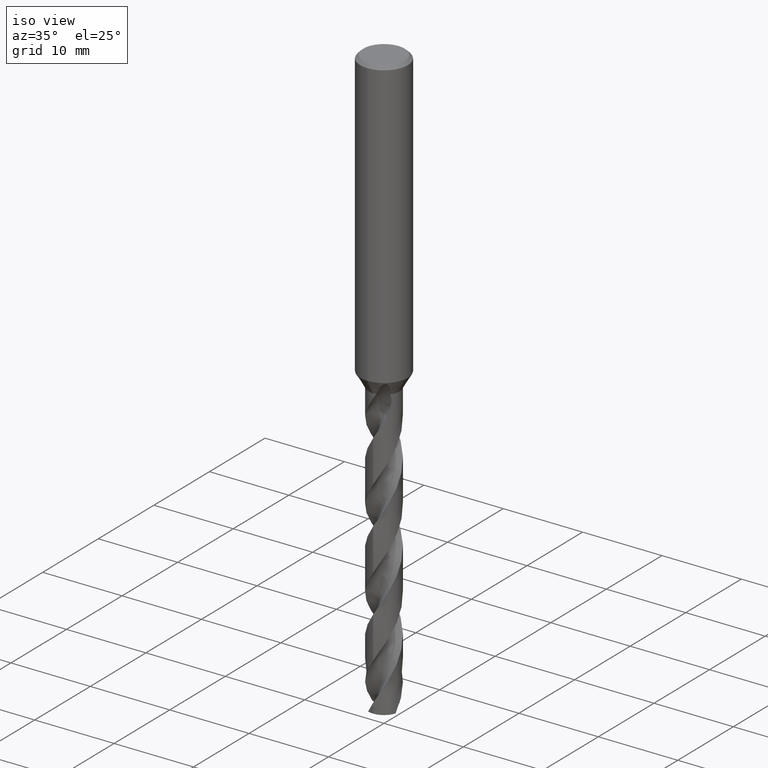
[diagram: clean part render]
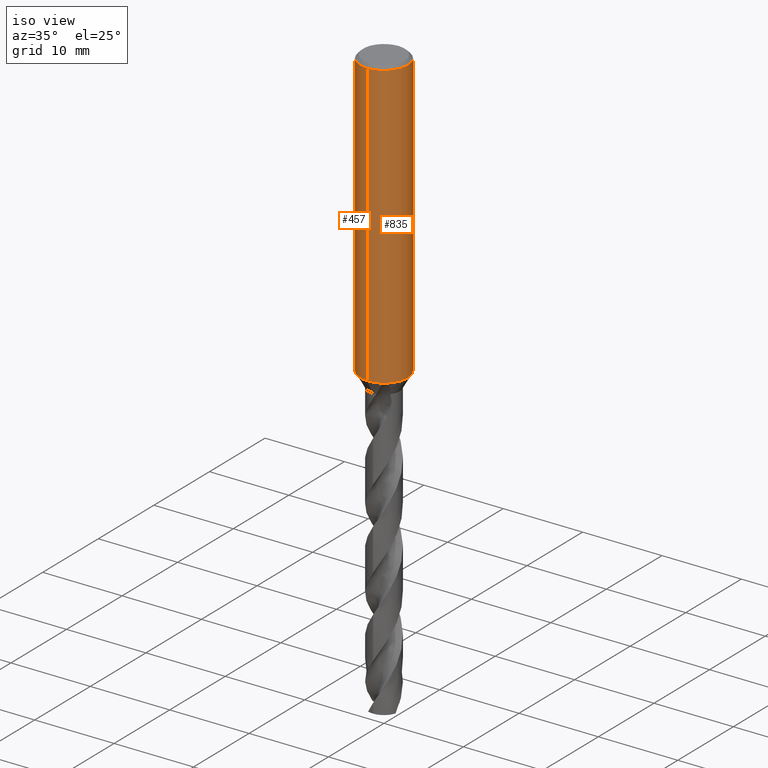
[diagram: same view with one multi-face feature highlighted, each face labeled with its STEP entity id]
A machine part, iso view. The highlighted faces form ONE feature: a constant-radius fillet chain: 2 tangent blend faces with common blend radius 3 mm. The faces share edges in the B-rep.
Their STEP definitions:
[1] entity #457 (Cylinder):
#303=VERTEX_POINT('',#858);
#351=VERTEX_POINT('',#911);
#357=EDGE_CURVE('',#303,#759,#917,.T.);
#365=EDGE_CURVE('',#351,#617,#925,.T.);
#397=VERTEX_POINT('',#960);
#457=ADVANCED_FACE('',(#1027),#1028,.T.);
#475=VERTEX_POINT('',#1047);
#509=EDGE_CURVE('',#715,#719,#1081,.T.);
#511=EDGE_CURVE('',#661,#397,#1083,.T.);
#523=EDGE_CURVE('',#719,#475,#1096,.T.);
#543=EDGE_CURVE('',#759,#657,#1117,.T.);
#617=VERTEX_POINT('',#1197);
#621=EDGE_CURVE('',#773,#715,#1201,.T.);
#627=EDGE_CURVE('',#397,#773,#1207,.T.);
#657=VERTEX_POINT('',#1242);
#661=VERTEX_POINT('',#1246);
#715=VERTEX_POINT('',#1306);
#717=EDGE_CURVE('',#617,#661,#1308,.T.);
#719=VERTEX_POINT('',#1310);
#745=EDGE_CURVE('',#657,#811,#1340,.T.);
#749=EDGE_CURVE('',#303,#475,#1344,.T.);
#759=VERTEX_POINT('',#1354);
#773=VERTEX_POINT('',#1369);
#799=EDGE_CURVE('',#811,#351,#1400,.T.);
#811=VERTEX_POINT('',#1414);
#858=CARTESIAN_POINT('',(3.67381906146713E-016,-3.0,-36.0));
#911=CARTESIAN_POINT('',(-0.486378944383045,2.96031003823262,-31.6432837483006));
#917=LINE('',#1973,#1974);
#925=B_SPLINE_CURVE_WITH_KNOTS('',3,(#2000,#2001,#2002,#2003,#2004,#2005,#2006,#2007,#2008,#2009,#2010,#2011,#2012,#2013,#2014,#2015,#2016,#2017,#2018,#2019,#2020,#2021,#2022,#2023,#2024,#2025,#2026),.UNSPECIFIED.,.F.,.F.,(4,2,3,2,2,2,2,2,2,2,2,2,4),(-0.54422824842136,-0.27211412421068,0.0,0.272114124210678,0.544228248421357,0.817906359646673,1.09158447087199,1.36255924571499,1.63353402055798,1.90530456554772,2.17707511053746,2.4488456555272,2.72061620051693),.UNSPECIFIED.);
#960=CARTESIAN_POINT('',(-2.06254272401587E-016,3.0,-32.5000801551881));
#1027=FACE_OUTER_BOUND('',#2813,.T.);
#1028=CYLINDRICAL_SURFACE('',#2814,3.0);
#1047=CARTESIAN_POINT('',(0.0,3.0,-36.0));
#1081=B_SPLINE_CURVE_WITH_KNOTS('',3,(#3271,#3272,#3273,#3274,#3275,#3276,#3277,#3278,#3279,#3280,#3281,#3282,#3283,#3284,#3285,#3286),.UNSPECIFIED.,.F.,.F.,(4,2,2,2,2,2,2,4),(5.66023402257373,6.29060333517104,6.60504483258975,6.91948633000846,7.23392782742717,7.54836932484587,7.86141901111221,8.17446869737855),.UNSPECIFIED.);
#1083=B_SPLINE_CURVE_WITH_KNOTS('',3,(#3289,#3290,#3291,#3292,#3293,#3294,#3295,#3296,#3297,#3298,#3299,#3300,#3301,#3302),.UNSPECIFIED.,.F.,.F.,(4,2,2,2,2,2,4),(3.16026050654945,3.61086409539206,4.06146768423468,4.51207127307729,4.95991823802074,5.40776520296419,5.86282890530594),.UNSPECIFIED.);
#1096=LINE('',#3333,#3334);
#1117=CIRCLE('',#3399,3.0);
#1197=CARTESIAN_POINT('',(-0.562333990228013,2.94682549253162,-31.3171221986971));
#1201=ELLIPSE('',#5271,3.34478529612858,3.0);
#1207=LINE('',#5282,#5283);
#1242=CARTESIAN_POINT('',(0.0,3.0,-0.399999999999999));
#1246=CARTESIAN_POINT('',(-1.0350734039088,2.81578107254819,-31.3171221986971));
#1306=CARTESIAN_POINT('',(-1.337052752443,2.68557069115386,-33.3720803908795));
#1308=CIRCLE('',#5827,3.0);
#1310=CARTESIAN_POINT('',(-2.46407913303377E-016,3.0,-34.0310253601033));
#1340=LINE('',#6210,#6211);
#1344=CIRCLE('',#6372,3.0);
#1354=CARTESIAN_POINT('',(3.67381906146713E-016,-3.0,-0.399999999999999));
#1369=CARTESIAN_POINT('',(-3.67366600472444E-016,3.0,-32.7128911336578));
#1400=B_SPLINE_CURVE_WITH_KNOTS('',3,(#6728,#6729,#6730,#6731,#6732,#6733,#6734,#6735,#6736,#6737,#6738,#6739,#6740,#6741,#6742,#6743,#6744,#6745,#6746,#6747,#6748,#6749,#6750,#6751,#6752,#6753,#6754),.UNSPECIFIED.,.F.,.F.,(4,2,3,2,2,2,2,2,2,2,2,2,4),(-0.54422824842136,-0.27211412421068,0.0,0.272114124210678,0.544228248421357,0.817906359646673,1.09158447087199,1.36255924571499,1.63353402055798,1.90530456554772,2.17707511053746,2.4488456555272,2.72061620051693),.UNSPECIFIED.);
#1414=CARTESIAN_POINT('',(-1.20768269592175E-015,3.0,-32.0232688117743));
#1973=CARTESIAN_POINT('',(3.67381906146713E-016,-3.0,-18.2));
#1974=VECTOR('',#7673,1.0);
#2000=CARTESIAN_POINT('',(0.665621182276714,2.92522622060321,-30.8140957881762));
#2001=CARTESIAN_POINT('',(0.728850563417096,2.91083867849353,-30.877518087557));
#2002=CARTESIAN_POINT('',(0.783900459387161,2.89602337967411,-30.9578702196133));
#2003=CARTESIAN_POINT('',(0.857188692916628,2.87518328740958,-31.1345580124299));
#2004=CARTESIAN_POINT('',(0.875400981188567,2.86943777108584,-31.2309373045166));
#2005=CARTESIAN_POINT('',(0.875400981188567,2.86943777108584,-31.3216420125868));
#2006=CARTESIAN_POINT('',(0.875400981188567,2.86943777108584,-31.412346720657));
#2007=CARTESIAN_POINT('',(0.857188692916629,2.87518328740958,-31.5087260127437));
#2008=CARTESIAN_POINT('',(0.783900459387161,2.89602337967411,-31.6854138055602));
#2009=CARTESIAN_POINT('',(0.728850563417096,2.91083867849353,-31.7657659376165));
#2010=CARTESIAN_POINT('',(0.60202838769231,2.93969645569731,-31.8929750586276));
#2011=CARTESIAN_POINT('',(0.5214778595293,2.95568533572518,-31.9483797636259));
#2012=CARTESIAN_POINT('',(0.34429909105015,2.98152194310932,-32.0221641076746));
#2013=CARTESIAN_POINT('',(0.247628172090375,2.99115403786358,-32.0405166027747));
#2014=CARTESIAN_POINT('',(0.0663244946631877,3.00062654348629,-32.0405166027747));
#2015=CARTESIAN_POINT('',(-0.0299285908853379,3.00115720326599,-32.0224875186921));
#2016=CARTESIAN_POINT('',(-0.206881310600538,2.99416773126077,-31.949244373347));
#2017=CARTESIAN_POINT('',(-0.287593937381961,2.98687212067831,-31.8940404490632));
#2018=CARTESIAN_POINT('',(-0.415200117492864,2.97182576996222,-31.7666805419979));
#2019=CARTESIAN_POINT('',(-0.470604049431396,2.96309385107775,-31.6859121102136));
#2020=CARTESIAN_POINT('',(-0.544183869965539,2.95046729924835,-31.5086992019516));
#2021=CARTESIAN_POINT('',(-0.562348199187247,2.94682278104247,-31.41223219425));
#2022=CARTESIAN_POINT('',(-0.562348199187247,2.94682278104247,-31.2310518309235));
#2023=CARTESIAN_POINT('',(-0.54418386996554,2.95046729924835,-31.134584823222));
#2024=CARTESIAN_POINT('',(-0.4706040494314,2.96309385107775,-30.95737191496));
#2025=CARTESIAN_POINT('',(-0.415200117492863,2.97182576996222,-30.8766034831756));
#2026=CARTESIAN_POINT('',(-0.351303479704285,2.97935997575782,-30.812830162452));
#2813=EDGE_LOOP('',(#7813,#7814,#7815,#7816,#7817,#7818,#7819,#7820,#7821,#7822,#7823,#7824));
#2814=AXIS2_PLACEMENT_3D('',#7825,#7826,#7827);
#3271=CARTESIAN_POINT('',(-1.53050642192579,2.58022287650581,-33.0319811255889));
#3272=CARTESIAN_POINT('',(-1.44691631248335,2.62980577312329,-33.2314887010961));
#3273=CARTESIAN_POINT('',(-1.32276760444366,2.69707077181617,-33.4113258593841));
#3274=CARTESIAN_POINT('',(-1.10973155101076,2.78826898930335,-33.6245951706909));
#3275=CARTESIAN_POINT('',(-1.02948996220254,2.81934349084513,-33.6916117853674));
#3276=CARTESIAN_POINT('',(-0.853932698223484,2.87738531454781,-33.8105216600777));
#3277=CARTESIAN_POINT('',(-0.758609991487907,2.90431263574779,-33.8624240602539));
#3278=CARTESIAN_POINT('',(-0.558469552260235,2.94934446690523,-33.9464055954533));
#3279=CARTESIAN_POINT('',(-0.453457041446381,2.96746268462387,-33.9785511641911));
#3280=CARTESIAN_POINT('',(-0.240810292537893,2.99223469602914,-34.0209924679526));
#3281=CARTESIAN_POINT('',(-0.133171317626829,2.99887501234033,-34.0312723335086));
#3282=CARTESIAN_POINT('',(0.0759830626177195,3.00085245803086,-34.0312723335086));
#3283=CARTESIAN_POINT('',(0.183273473896684,2.99629272230549,-34.0210815541729));
#3284=CARTESIAN_POINT('',(0.39543915272815,2.97573303917486,-33.9788816901513));
#3285=CARTESIAN_POINT('',(0.500318639064909,2.95974677710468,-33.9468871509919));
#3286=CARTESIAN_POINT('',(0.600330982089903,2.93932011049205,-33.9050368602192));
#3289=CARTESIAN_POINT('',(-0.944028754947609,2.84759718180646,-30.87109591768));
#3290=CARTESIAN_POINT('',(-1.00479265183033,2.82745289805341,-31.0168616503562));
#3291=CARTESIAN_POINT('',(-1.03510901790186,2.81576798068631,-31.1761006644519));
#3292=CARTESIAN_POINT('',(-1.03510901790186,2.81576798068631,-31.4765030570137));
#3293=CARTESIAN_POINT('',(-1.00479265183033,2.82745289805341,-31.6357420711094));
#3294=CARTESIAN_POINT('',(-0.88326485806506,2.86774146555976,-31.9272735364618));
#3295=CARTESIAN_POINT('',(-0.792109261194285,2.89554580131596,-32.0596991578702));
#3296=CARTESIAN_POINT('',(-0.582867737485067,2.94478284423827,-32.2682275153448));
#3297=CARTESIAN_POINT('',(-0.450640829386874,2.96956027684007,-32.358826497016));
#3298=CARTESIAN_POINT('',(-0.159819744133953,2.99930375982357,-32.4794282329782));
#3299=CARTESIAN_POINT('',(-0.00114290335869099,3.00371168811663,-32.5093686300866));
#3300=CARTESIAN_POINT('',(0.299461057962613,2.98886806232847,-32.5093686300866));
#3301=CARTESIAN_POINT('',(0.459264276215476,2.96836791045541,-32.4785566268234));
#3302=CARTESIAN_POINT('',(0.604975334200916,2.93836771779988,-32.4175314011172));
#3333=CARTESIAN_POINT('',(-3.67381906146713E-016,3.0,-18.2));
#3334=VECTOR('',#7871,1.0);
#3399=AXIS2_PLACEMENT_3D('',#7884,#7885,#7886);
#5271=AXIS2_PLACEMENT_3D('',#7962,#7963,#7964);
#5282=CARTESIAN_POINT('',(-3.67381906146713E-016,3.0,-18.2));
#5283=VECTOR('',#7965,1.0);
#5827=AXIS2_PLACEMENT_3D('',#8076,#8077,#8078);
#6210=CARTESIAN_POINT('',(-3.67381906146713E-016,3.0,-18.2));
#6211=VECTOR('',#8134,1.0);
#6372=AXIS2_PLACEMENT_3D('',#8135,#8136,#8137);
#6728=CARTESIAN_POINT('',(0.665621182276714,2.92522622060321,-30.8140957881762));
#6729=CARTESIAN_POINT('',(0.728850563417096,2.91083867849353,-30.877518087557));
#6730=CARTESIAN_POINT('',(0.783900459387161,2.89602337967411,-30.9578702196133));
#6731=CARTESIAN_POINT('',(0.857188692916628,2.87518328740958,-31.1345580124299));
#6732=CARTESIAN_POINT('',(0.875400981188567,2.86943777108584,-31.2309373045166));
#6733=CARTESIAN_POINT('',(0.875400981188567,2.86943777108584,-31.3216420125868));
#6734=CARTESIAN_POINT('',(0.875400981188567,2.86943777108584,-31.412346720657));
#6735=CARTESIAN_POINT('',(0.857188692916629,2.87518328740958,-31.5087260127437));
#6736=CARTESIAN_POINT('',(0.783900459387161,2.89602337967411,-31.6854138055602));
#6737=CARTESIAN_POINT('',(0.728850563417096,2.91083867849353,-31.7657659376165));
#6738=CARTESIAN_POINT('',(0.60202838769231,2.93969645569731,-31.8929750586276));
#6739=CARTESIAN_POINT('',(0.5214778595293,2.95568533572518,-31.9483797636259));
#6740=CARTESIAN_POINT('',(0.34429909105015,2.98152194310932,-32.0221641076746));
#6741=CARTESIAN_POINT('',(0.247628172090375,2.99115403786358,-32.0405166027747));
#6742=CARTESIAN_POINT('',(0.0663244946631877,3.00062654348629,-32.0405166027747));
#6743=CARTESIAN_POINT('',(-0.0299285908853379,3.00115720326599,-32.0224875186921));
#6744=CARTESIAN_POINT('',(-0.206881310600538,2.99416773126077,-31.949244373347));
#6745=CARTESIAN_POINT('',(-0.287593937381961,2.98687212067831,-31.8940404490632));
#6746=CARTESIAN_POINT('',(-0.415200117492864,2.97182576996222,-31.7666805419979));
#6747=CARTESIAN_POINT('',(-0.470604049431396,2.96309385107775,-31.6859121102136));
#6748=CARTESIAN_POINT('',(-0.544183869965539,2.95046729924835,-31.5086992019516));
#6749=CARTESIAN_POINT('',(-0.562348199187247,2.94682278104247,-31.41223219425));
#6750=CARTESIAN_POINT('',(-0.562348199187247,2.94682278104247,-31.2310518309235));
#6751=CARTESIAN_POINT('',(-0.54418386996554,2.95046729924835,-31.134584823222));
#6752=CARTESIAN_POINT('',(-0.4706040494314,2.96309385107775,-30.95737191496));
#6753=CARTESIAN_POINT('',(-0.415200117492863,2.97182576996222,-30.8766034831756));
#6754=CARTESIAN_POINT('',(-0.351303479704285,2.97935997575782,-30.812830162452));
#7673=DIRECTION('',(-0.0,-0.0,1.0));
#7813=ORIENTED_EDGE('',*,*,#745,.T.);
#7814=ORIENTED_EDGE('',*,*,#799,.T.);
#7815=ORIENTED_EDGE('',*,*,#365,.T.);
#7816=ORIENTED_EDGE('',*,*,#717,.T.);
#7817=ORIENTED_EDGE('',*,*,#511,.T.);
#7818=ORIENTED_EDGE('',*,*,#627,.T.);
#7819=ORIENTED_EDGE('',*,*,#621,.T.);
#7820=ORIENTED_EDGE('',*,*,#509,.T.);
#7821=ORIENTED_EDGE('',*,*,#523,.T.);
#7822=ORIENTED_EDGE('',*,*,#749,.F.);
#7823=ORIENTED_EDGE('',*,*,#357,.T.);
#7824=ORIENTED_EDGE('',*,*,#543,.T.);
#7825=CARTESIAN_POINT('',(0.0,0.0,-18.2));
#7826=DIRECTION('',(-0.0,-0.0,1.0));
#7827=DIRECTION('',(0.0,1.0,0.0));
#7871=DIRECTION('',(0.0,0.0,-1.0));
#7884=CARTESIAN_POINT('',(0.0,0.0,-0.399999999999999));
#7885=DIRECTION('',(0.0,0.0,-1.0));
#7886=DIRECTION('',(0.0,1.0,0.0));
#7962=CARTESIAN_POINT('',(0.0,0.0,-32.7128911336578));
#7963=DIRECTION('',(-0.442195774284071,0.0,0.896918556617774));
#7964=DIRECTION('',(0.896918556617774,-0.0,0.442195774284071));
#7965=DIRECTION('',(0.0,0.0,-1.0));
#8076=CARTESIAN_POINT('',(0.0,0.0,-31.3171221986971));
#8077=DIRECTION('',(0.0,-0.0,1.0));
#8078=DIRECTION('',(0.0,1.0,0.0));
#8134=DIRECTION('',(0.0,0.0,-1.0));
#8135=CARTESIAN_POINT('',(0.0,0.0,-36.0));
#8136=DIRECTION('',(0.0,0.0,-1.0));
#8137=DIRECTION('',(0.0,1.0,0.0));
[2] entity #835 (Cylinder):
#303=VERTEX_POINT('',#858);
#325=EDGE_CURVE('',#475,#303,#883,.T.);
#357=EDGE_CURVE('',#303,#759,#917,.T.);
#407=VERTEX_POINT('',#971);
#413=EDGE_CURVE('',#719,#707,#978,.T.);
#473=VERTEX_POINT('',#1045);
#475=VERTEX_POINT('',#1047);
#523=EDGE_CURVE('',#719,#475,#1096,.T.);
#527=VERTEX_POINT('',#1100);
#541=EDGE_CURVE('',#473,#811,#1115,.T.);
#559=EDGE_CURVE('',#407,#565,#1135,.T.);
#565=VERTEX_POINT('',#1141);
#609=VERTEX_POINT('',#1189);
#657=VERTEX_POINT('',#1242);
#675=EDGE_CURVE('',#527,#407,#1261,.T.);
#707=VERTEX_POINT('',#1297);
#719=VERTEX_POINT('',#1310);
#745=EDGE_CURVE('',#657,#811,#1340,.T.);
#759=VERTEX_POINT('',#1354);
#771=EDGE_CURVE('',#707,#609,#1367,.T.);
#779=EDGE_CURVE('',#657,#759,#1376,.T.);
#781=EDGE_CURVE('',#565,#473,#1378,.T.);
#811=VERTEX_POINT('',#1414);
#833=EDGE_CURVE('',#609,#527,#1437,.T.);
#835=ADVANCED_FACE('',(#1439),#1440,.T.);
#858=CARTESIAN_POINT('',(3.67381906146713E-016,-3.0,-36.0));
#883=CIRCLE('',#1645,3.0);
#917=LINE('',#1973,#1974);
#971=CARTESIAN_POINT('',(1.33721006514658,2.68549236485056,-33.2901657003257));
#978=B_SPLINE_CURVE_WITH_KNOTS('',3,(#2523,#2524,#2525,#2526,#2527,#2528,#2529,#2530,#2531,#2532,#2533,#2534,#2535,#2536,#2537,#2538),.UNSPECIFIED.,.F.,.F.,(4,2,2,2,2,2,2,4),(5.66023402257373,6.29060333517104,6.60504483258975,6.91948633000846,7.23392782742717,7.54836932484587,7.86141901111221,8.17446869737855),.UNSPECIFIED.);
#1045=CARTESIAN_POINT('',(0.799431726384364,2.89152363207533,-31.000000276873));
#1047=CARTESIAN_POINT('',(0.0,3.0,-36.0));
#1096=LINE('',#3333,#3334);
#1100=CARTESIAN_POINT('',(0.873560781758956,2.86999852971612,-33.7587351791531));
#1115=B_SPLINE_CURVE_WITH_KNOTS('',3,(#3370,#3371,#3372,#3373,#3374,#3375,#3376,#3377,#3378,#3379,#3380,#3381,#3382,#3383,#3384,#3385,#3386,#3387,#3388,#3389,#3390,#3391,#3392,#3393,#3394,#3395,#3396),.UNSPECIFIED.,.F.,.F.,(4,2,3,2,2,2,2,2,2,2,2,2,4),(-0.54422824842136,-0.27211412421068,0.0,0.272114124210678,0.544228248421357,0.817906359646673,1.09158447087199,1.36255924571499,1.63353402055798,1.90530456554772,2.17707511053746,2.4488456555272,2.72061620051693),.UNSPECIFIED.);
#1135=LINE('',#3734,#3735);
#1141=CARTESIAN_POINT('',(1.33721006514658,2.68549236485057,-31.5150484364821));
#1189=CARTESIAN_POINT('',(0.873560781758957,2.86999852971612,-32.3198931596091));
#1242=CARTESIAN_POINT('',(0.0,3.0,-0.399999999999999));
#1261=B_SPLINE_CURVE_WITH_KNOTS('',3,(#5562,#5563,#5564,#5565,#5566,#5567,#5568,#5569),.UNSPECIFIED.,.F.,.F.,(4,2,2,4),(8.17446522132897,8.48751487521068,8.80056452909238,9.43014514523744),.UNSPECIFIED.);
#1297=CARTESIAN_POINT('',(0.29010312703583,2.98594041730307,-33.9998328990228));
#1310=CARTESIAN_POINT('',(-2.46407913303377E-016,3.0,-34.0310253601033));
#1340=LINE('',#6210,#6211);
#1354=CARTESIAN_POINT('',(3.67381906146713E-016,-3.0,-0.399999999999999));
#1367=ELLIPSE('',#6412,9.14398372010932,3.0);
#1376=CIRCLE('',#6558,3.0);
#1378=B_SPLINE_CURVE_WITH_KNOTS('',3,(#6561,#6562,#6563,#6564,#6565,#6566,#6567,#6568),.UNSPECIFIED.,.F.,.F.,(4,2,2,4),(0.629580638580865,1.25916127716173,1.57221094126725,1.88526060537277),.UNSPECIFIED.);
#1414=CARTESIAN_POINT('',(-1.20768269592175E-015,3.0,-32.0232688117743));
#1437=LINE('',#7597,#7598);
#1439=FACE_OUTER_BOUND('',#7600,.T.);
#1440=CYLINDRICAL_SURFACE('',#7601,3.0);
#1645=AXIS2_PLACEMENT_3D('',#7648,#7649,#7650);
#1973=CARTESIAN_POINT('',(3.67381906146713E-016,-3.0,-18.2));
#1974=VECTOR('',#7673,1.0);
#2523=CARTESIAN_POINT('',(-1.53050642192579,2.58022287650581,-33.0319811255889));
#2524=CARTESIAN_POINT('',(-1.44691631248335,2.62980577312329,-33.2314887010961));
#2525=CARTESIAN_POINT('',(-1.32276760444366,2.69707077181617,-33.4113258593841));
#2526=CARTESIAN_POINT('',(-1.10973155101076,2.78826898930335,-33.6245951706909));
#2527=CARTESIAN_POINT('',(-1.02948996220254,2.81934349084513,-33.6916117853674));
#2528=CARTESIAN_POINT('',(-0.853932698223484,2.87738531454781,-33.8105216600777));
#2529=CARTESIAN_POINT('',(-0.758609991487907,2.90431263574779,-33.8624240602539));
#2530=CARTESIAN_POINT('',(-0.558469552260235,2.94934446690523,-33.9464055954533));
#2531=CARTESIAN_POINT('',(-0.453457041446381,2.96746268462387,-33.9785511641911));
#2532=CARTESIAN_POINT('',(-0.240810292537893,2.99223469602914,-34.0209924679526));
#2533=CARTESIAN_POINT('',(-0.133171317626829,2.99887501234033,-34.0312723335086));
#2534=CARTESIAN_POINT('',(0.0759830626177195,3.00085245803086,-34.0312723335086));
#2535=CARTESIAN_POINT('',(0.183273473896684,2.99629272230549,-34.0210815541729));
#2536=CARTESIAN_POINT('',(0.39543915272815,2.97573303917486,-33.9788816901513));
#2537=CARTESIAN_POINT('',(0.500318639064909,2.95974677710468,-33.9468871509919));
#2538=CARTESIAN_POINT('',(0.600330982089903,2.93932011049205,-33.9050368602192));
#3333=CARTESIAN_POINT('',(-3.67381906146713E-016,3.0,-18.2));
#3334=VECTOR('',#7871,1.0);
#3370=CARTESIAN_POINT('',(0.665621182276714,2.92522622060321,-30.8140957881762));
#3371=CARTESIAN_POINT('',(0.728850563417096,2.91083867849353,-30.877518087557));
#3372=CARTESIAN_POINT('',(0.783900459387161,2.89602337967411,-30.9578702196133));
#3373=CARTESIAN_POINT('',(0.857188692916628,2.87518328740958,-31.1345580124299));
#3374=CARTESIAN_POINT('',(0.875400981188567,2.86943777108584,-31.2309373045166));
#3375=CARTESIAN_POINT('',(0.875400981188567,2.86943777108584,-31.3216420125868));
#3376=CARTESIAN_POINT('',(0.875400981188567,2.86943777108584,-31.412346720657));
#3377=CARTESIAN_POINT('',(0.857188692916629,2.87518328740958,-31.5087260127437));
#3378=CARTESIAN_POINT('',(0.783900459387161,2.89602337967411,-31.6854138055602));
#3379=CARTESIAN_POINT('',(0.728850563417096,2.91083867849353,-31.7657659376165));
#3380=CARTESIAN_POINT('',(0.60202838769231,2.93969645569731,-31.8929750586276));
#3381=CARTESIAN_POINT('',(0.5214778595293,2.95568533572518,-31.9483797636259));
#3382=CARTESIAN_POINT('',(0.34429909105015,2.98152194310932,-32.0221641076746));
#3383=CARTESIAN_POINT('',(0.247628172090375,2.99115403786358,-32.0405166027747));
#3384=CARTESIAN_POINT('',(0.0663244946631877,3.00062654348629,-32.0405166027747));
#3385=CARTESIAN_POINT('',(-0.0299285908853379,3.00115720326599,-32.0224875186921));
#3386=CARTESIAN_POINT('',(-0.206881310600538,2.99416773126077,-31.949244373347));
#3387=CARTESIAN_POINT('',(-0.287593937381961,2.98687212067831,-31.8940404490632));
#3388=CARTESIAN_POINT('',(-0.415200117492864,2.97182576996222,-31.7666805419979));
#3389=CARTESIAN_POINT('',(-0.470604049431396,2.96309385107775,-31.6859121102136));
#3390=CARTESIAN_POINT('',(-0.544183869965539,2.95046729924835,-31.5086992019516));
#3391=CARTESIAN_POINT('',(-0.562348199187247,2.94682278104247,-31.41223219425));
#3392=CARTESIAN_POINT('',(-0.562348199187247,2.94682278104247,-31.2310518309235));
#3393=CARTESIAN_POINT('',(-0.54418386996554,2.95046729924835,-31.134584823222));
#3394=CARTESIAN_POINT('',(-0.4706040494314,2.96309385107775,-30.95737191496));
#3395=CARTESIAN_POINT('',(-0.415200117492863,2.97182576996222,-30.8766034831756));
#3396=CARTESIAN_POINT('',(-0.351303479704285,2.97935997575782,-30.812830162452));
#3734=CARTESIAN_POINT('',(1.33721006514658,2.68549236485056,-32.4026070684039));
#3735=VECTOR('',#7913,1.0);
#5562=CARTESIAN_POINT('',(0.600330703923335,2.93932016730517,-33.9050364278969));
#5563=CARTESIAN_POINT('',(0.700343038443484,2.91889351228921,-33.8631861412044));
#5564=CARTESIAN_POINT('',(0.795685584213131,2.8940165604303,-33.8114119954011));
#5565=CARTESIAN_POINT('',(0.971352589628262,2.83988055167306,-33.692706383359));
#5566=CARTESIAN_POINT('',(1.0516835476539,2.81066216129401,-33.6257659914415));
#5567=CARTESIAN_POINT('',(1.26543925920527,2.72440179743877,-33.4122346680481));
#5568=CARTESIAN_POINT('',(1.3899740959159,2.66030349847411,-33.2319488826214));
#5569=CARTESIAN_POINT('',(1.47371594109741,2.61307507066968,-33.0321377817991));
#6210=CARTESIAN_POINT('',(-3.67381906146713E-016,3.0,-18.2));
#6211=VECTOR('',#8134,1.0);
#6412=AXIS2_PLACEMENT_3D('',#8154,#8155,#8156);
#6558=AXIS2_PLACEMENT_3D('',#8163,#8164,#8165);
#6561=CARTESIAN_POINT('',(1.47371594887933,2.61307506628086,-31.7730763684241));
#6562=CARTESIAN_POINT('',(1.38997410067862,2.66030349611674,-31.5732652606136));
#6563=CARTESIAN_POINT('',(1.2654392594963,2.72440179761724,-31.3929794688919));
#6564=CARTESIAN_POINT('',(1.05168354029617,2.81066216411606,-31.1794481382038));
#6565=CARTESIAN_POINT('',(0.971352579549231,2.83988055521709,-31.1125077441098));
#6566=CARTESIAN_POINT('',(0.795685568183073,2.89401656493242,-30.9938021282019));
#6567=CARTESIAN_POINT('',(0.700343019183212,2.91889351702519,-30.9420279807093));
#6568=CARTESIAN_POINT('',(0.600330681290245,2.93932017192779,-30.9001776926585));
#7597=CARTESIAN_POINT('',(0.873560781758957,2.86999852971612,-33.0393141693811));
#7598=VECTOR('',#8238,1.0);
#7600=EDGE_LOOP('',(#8240,#8241,#8242,#8243,#8244,#8245,#8246,#8247,#8248,#8249,#8250,#8251));
#7601=AXIS2_PLACEMENT_3D('',#8252,#8253,#8254);
#7648=CARTESIAN_POINT('',(0.0,0.0,-36.0));
#7649=DIRECTION('',(0.0,0.0,-1.0));
#7650=DIRECTION('',(0.0,1.0,0.0));
#7673=DIRECTION('',(-0.0,-0.0,1.0));
#7871=DIRECTION('',(0.0,0.0,-1.0));
#7913=DIRECTION('',(-0.0,-0.0,1.0));
#8134=DIRECTION('',(0.0,0.0,-1.0));
#8154=CARTESIAN_POINT('',(0.0,0.0,-34.8351219173269));
#8155=DIRECTION('',(0.944648353914092,0.0,-0.328084573619969));
#8156=DIRECTION('',(0.328084573619969,-0.0,0.944648353914092));
#8163=CARTESIAN_POINT('',(0.0,0.0,-0.399999999999999));
#8164=DIRECTION('',(0.0,0.0,-1.0));
#8165=DIRECTION('',(0.0,1.0,0.0));
#8238=DIRECTION('',(0.0,0.0,-1.0));
#8240=ORIENTED_EDGE('',*,*,#745,.F.);
#8241=ORIENTED_EDGE('',*,*,#779,.T.);
#8242=ORIENTED_EDGE('',*,*,#357,.F.);
#8243=ORIENTED_EDGE('',*,*,#325,.F.);
#8244=ORIENTED_EDGE('',*,*,#523,.F.);
#8245=ORIENTED_EDGE('',*,*,#413,.T.);
#8246=ORIENTED_EDGE('',*,*,#771,.T.);
#8247=ORIENTED_EDGE('',*,*,#833,.T.);
#8248=ORIENTED_EDGE('',*,*,#675,.T.);
#8249=ORIENTED_EDGE('',*,*,#559,.T.);
#8250=ORIENTED_EDGE('',*,*,#781,.T.);
#8251=ORIENTED_EDGE('',*,*,#541,.T.);
#8252=CARTESIAN_POINT('',(0.0,0.0,-18.2));
#8253=DIRECTION('',(-0.0,-0.0,1.0));
#8254=DIRECTION('',(0.0,1.0,0.0));